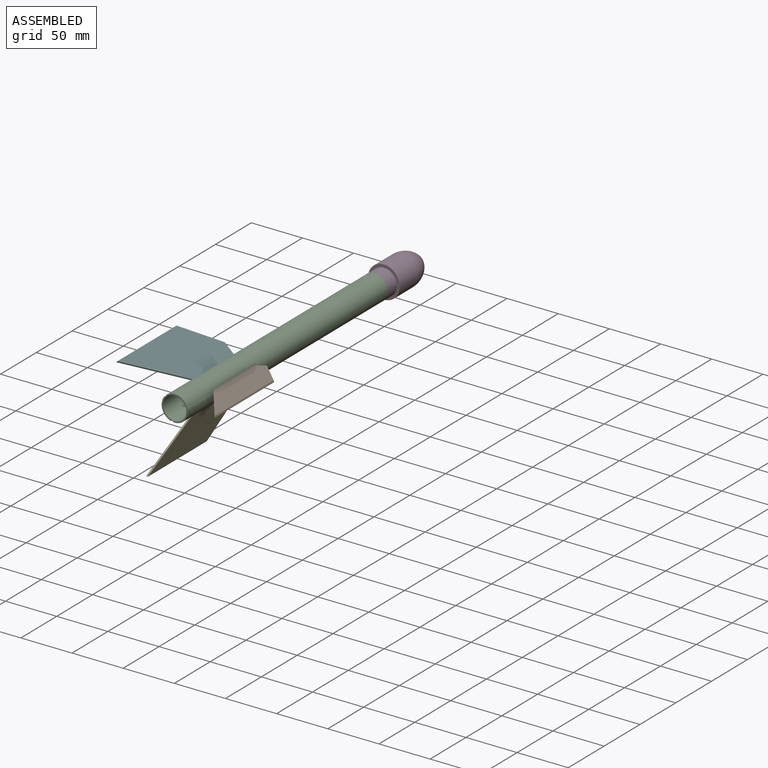
[diagram: assembled view]
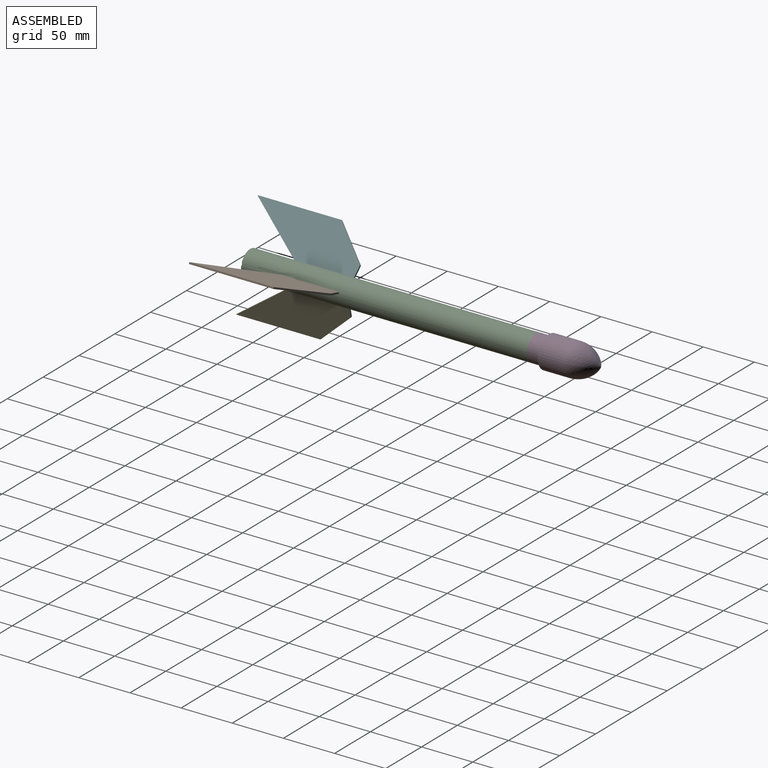
[diagram: assembled view, second angle]
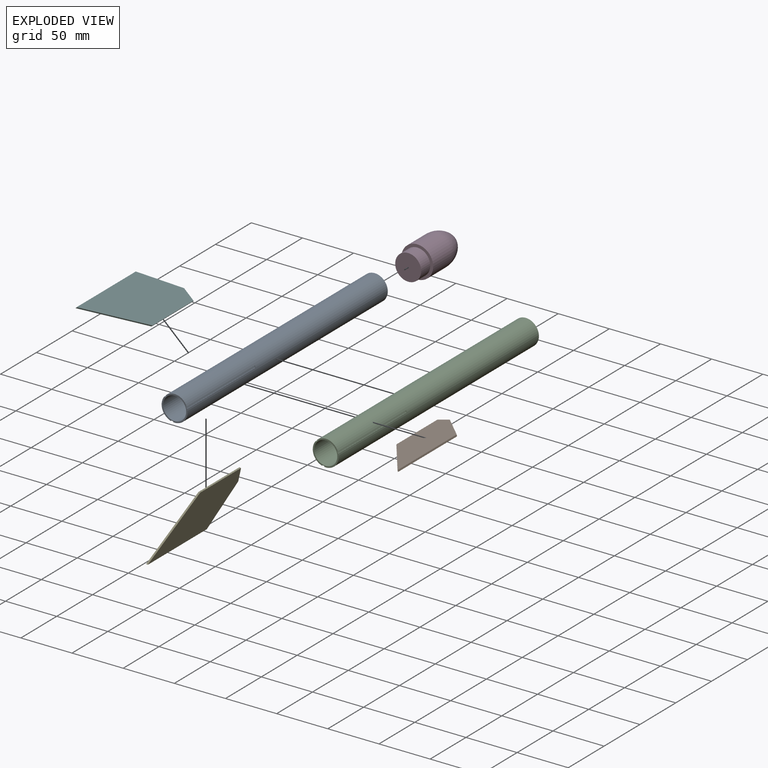
[diagram: exploded view]
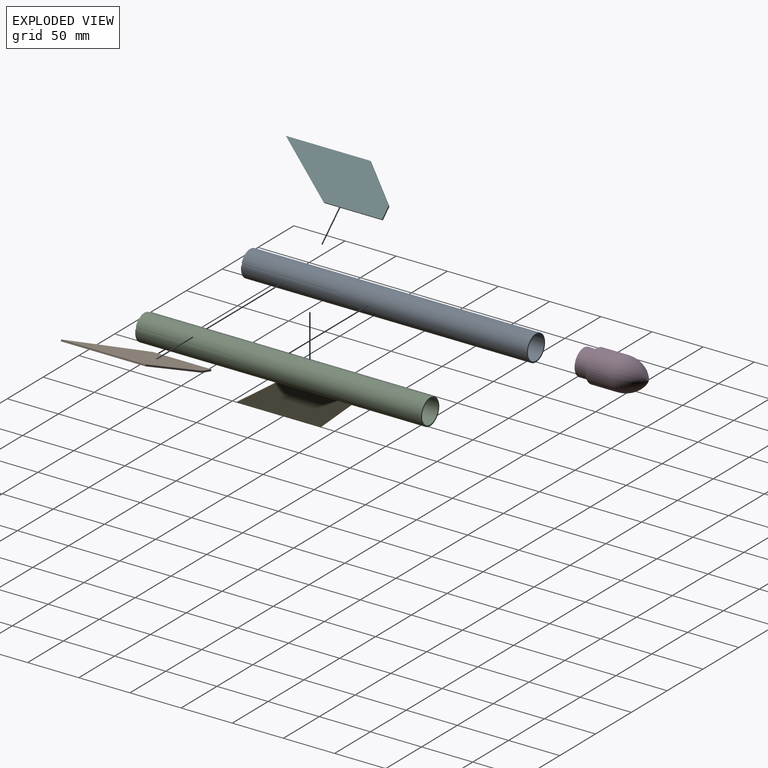
[diagram: exploded view, second angle]
ASSEMBLY  parts=6 mates=4
PART A: 19 faces, bbox 25.4x279.4x25.4 mm
  f0: plane 25.4x25.4mm, normal (0,-1,0), area 100.7mm2, adj f1,f2,f4,f5,f6,f7,f9,f10
  f1: cylinder r=11.3mm len=279.4mm, axis (0,1,0), area 19845.2mm2, adj f0,f3
  f2: cylinder r=12.7mm len=279.4mm, axis (0,1,0), area 21665.2mm2, adj f0,f3,f4,f7,f8,f11,f12,f13
  f3: plane 25.4x25.4mm, normal (0,1,0), area 105.2mm2, adj f1,f2
  f4: plane 95.25x0.5mm, normal (0.67,0,0.74), area 63.9mm2, adj f0,f2,f5,f8
  f5: plane 95.25x0.76mm, normal (-0.74,0,0.67), area 98.4mm2, adj f0,f4,f6,f8
  f6: plane 95.25x0.77mm, normal (-0.73,0,0.68), area 100.7mm2, adj f0,f5,f7,f8
  f7: plane 95.25x0.5mm, normal (-0.67,0,-0.74), area 65mm2, adj f0,f2,f6,f8
  f8: plane 2x1.91mm, normal (0,-1,0), area 1.5mm2, adj f2,f4,f5,f6,f7
  f9: plane 95.25x1.25mm, normal (-0.24,0,-0.97), area 122.1mm2, adj f0,f10,f12,f13
  f10: plane 95.25x1.05mm, normal (-0.21,0,-0.98), area 102.7mm2, adj f0,f9,f11,f13
  f11: plane 95.25x0.64mm, normal (0.98,0,-0.21), area 61.9mm2, adj f0,f2,f10,f13
  f12: plane 95.25x0.6mm, normal (-1,0,0.1), area 57mm2, adj f0,f2,f9,f13
  f13: plane 2.44x1.13mm, normal (0,-1,0), area 1.6mm2, adj f2,f9,f10,f11,f12
  f14: plane 95.25x0.63mm, normal (-0.27,0,0.96), area 62.4mm2, adj f0,f2,f17,f18
  f15: plane 95.25x0.61mm, normal (0.13,0,-0.99), area 58.6mm2, adj f0,f2,f16,f18
  f16: plane 95.25x1.09mm, normal (0.97,0,0.26), area 108mm2, adj f0,f15,f17,f18
  f17: plane 95.25x0.99mm, normal (0.95,0,0.3), area 99.1mm2, adj f0,f14,f16,f18
  f18: plane 2.17x1.24mm, normal (0,-1,0), area 1.4mm2, adj f2,f14,f15,f16,f17
PART B: 7 faces, bbox 44.5x1.6x116.8 mm
  f0: plane 82.55x1.6mm, normal (-1,0,0), area 132.1mm2, adj f1,f4,f5,f6
  f1: plane 34.29x31.75mm, normal (-0.73,0,-0.68), area 74.8mm2, adj f0,f2,f5,f6
  f2: plane 12.7x1.6mm, normal (0,0,-1), area 20.3mm2, adj f1,f3,f5,f6
  f3: plane 57.15x1.6mm, normal (1,0,0), area 91.5mm2, adj f2,f4,f5,f6
  f4: plane 59.69x44.45mm, normal (0.8,0,0.6), area 119.1mm2, adj f0,f3,f5,f6
  f5: plane 116.84x44.45mm, normal (0,-1,0), area 3322.6mm2, adj f0,f1,f2,f3,f4
  f6: plane 116.84x44.45mm, normal (0,1,0), area 3322.6mm2, adj f0,f1,f2,f3,f4
PART C: same geometry as A
PART D: 5 faces, bbox 31.1x31.1x38.1 mm
  f0: plane 25.4x25.4mm, normal (0,0,-1), area 506.7mm2, adj f1
  f1: cylinder r=12.7mm len=25.4mm, axis (0,0,1), area 1013.4mm2, adj f0,f2
  f2: plane 31.11x31.11mm, normal (0,0,-1), area 253.2mm2, adj f1,f3
  f3: cylinder r=15.55mm len=31.11mm, axis (0,0,1), area 2482.1mm2, adj f2,f4
  f4: revolved ~31.11x15.55mm, area 0mm2, adj f3
PART E: same geometry as B
PART F: same geometry as B
PLACE A t=(-77.78,62.32,-48.71)mm
PLACE B rot(axis=(0.09,0.7,-0.7),169.4deg) t=(-23.22,-156.12,-34.3)mm
PLACE C t=(-77.78,62.32,-48.71)mm
PLACE D rot(axis=(-1,0,0),90deg) t=(-77.78,62.32,-48.71)mm
PLACE E rot(axis=(0.66,-0.53,0.53),113.2deg) t=(-90.58,-156.12,-103.7)mm
PLACE F rot(axis=(0.87,0.34,-0.34),97.7deg) t=(-118.62,-156.12,-9.75)mm
MATE fastened E.f3 <-> A.f10  axis (0.21,0,0.98) through (-80.34,-150.41,-60.44)mm
MATE fastened F.f3 <-> A.f6  axis (0.73,0,-0.68) through (-86.65,-150.41,-40.65)mm
MATE fastened B.f3 <-> A.f16  axis (-0.97,0,-0.26) through (-66.35,-150.41,-45.06)mm
MATE fastened D.f1 <-> A.f2  axis (0,-1,0) through (-77.78,62.32,-48.71)mm
